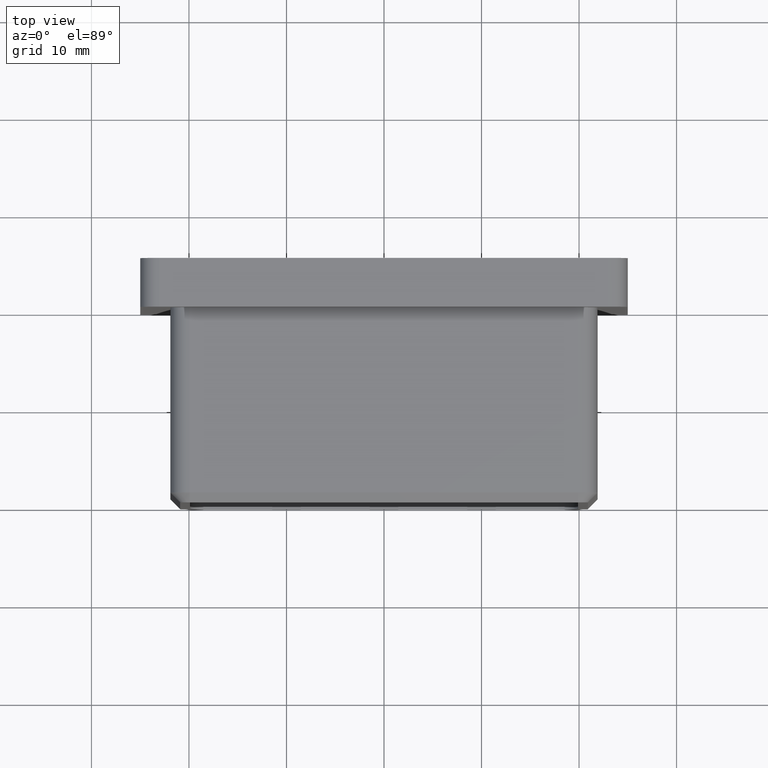
[diagram: clean part render]
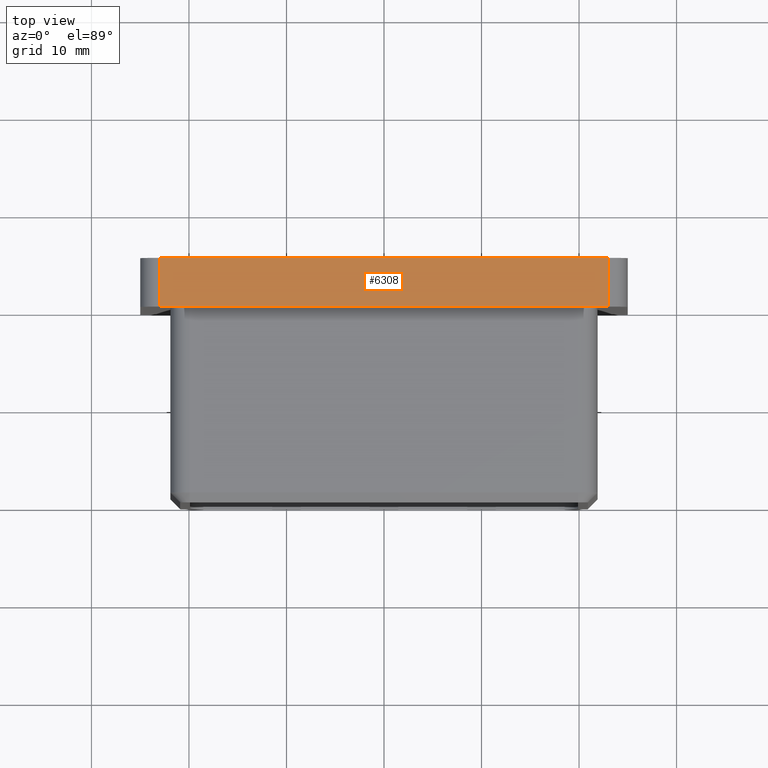
[diagram: same view with one face highlighted and labeled with its STEP entity id]
A machine part, top view. The second image highlights one B-rep face of the part: STEP entity #6308.
In plain terms, the highlighted planar face has unit normal (0, 0, -1).
Its self-contained STEP definition (entity closure, byte-faithful):
#393 = CARTESIAN_POINT ( 'NONE',  ( 23.00000000000000700, 0.0000000000000000000, 25.00000000000000400 ) ) ;
#406 = DIRECTION ( 'NONE',  ( 1.000000000000000000, 0.0000000000000000000, 0.0000000000000000000 ) ) ;
#741 = CARTESIAN_POINT ( 'NONE',  ( -22.99999999999999600, 5.000000000000000000, 25.00000000000000400 ) ) ;
#798 = FACE_OUTER_BOUND ( 'NONE', #850, .T. ) ;
#850 = EDGE_LOOP ( 'NONE', ( #4573, #2345, #15331, #6982 ) ) ;
#2257 = DIRECTION ( 'NONE',  ( 0.0000000000000000000, 0.0000000000000000000, -1.000000000000000000 ) ) ;
#2314 = VERTEX_POINT ( 'NONE', #9329 ) ;
#2345 = ORIENTED_EDGE ( 'NONE', *, *, #3915, .T. ) ;
#2372 = DIRECTION ( 'NONE',  ( -1.000000000000000000, 0.0000000000000000000, -0.0000000000000000000 ) ) ;
#3663 = VECTOR ( 'NONE', #13078, 1000.000000000000000 ) ;
#3689 = VECTOR ( 'NONE', #3936, 1000.000000000000000 ) ;
#3915 = EDGE_CURVE ( 'NONE', #13471, #10139, #13408, .T. ) ;
#3936 = DIRECTION ( 'NONE',  ( -0.0000000000000000000, 1.000000000000000000, -0.0000000000000000000 ) ) ;
#4573 = ORIENTED_EDGE ( 'NONE', *, *, #9281, .T. ) ;
#5442 = LINE ( 'NONE', #13397, #8073 ) ;
#6230 = CARTESIAN_POINT ( 'NONE',  ( -24.99999999999999300, 5.000000000000000000, 25.00000000000000400 ) ) ;
#6308 = ADVANCED_FACE ( 'NONE', ( #798 ), #10129, .F. ) ;
#6982 = ORIENTED_EDGE ( 'NONE', *, *, #14506, .T. ) ;
#7787 = LINE ( 'NONE', #16645, #9200 ) ;
#7808 = DIRECTION ( 'NONE',  ( 0.0000000000000000000, -1.000000000000000000, 0.0000000000000000000 ) ) ;
#8073 = VECTOR ( 'NONE', #406, 1000.000000000000000 ) ;
#8126 = LINE ( 'NONE', #9145, #3663 ) ;
#8791 = CARTESIAN_POINT ( 'NONE',  ( 23.00000000000000700, 5.000000000000000000, 25.00000000000000400 ) ) ;
#9145 = CARTESIAN_POINT ( 'NONE',  ( -24.99999999999999300, 5.000000000000000000, 25.00000000000000400 ) ) ;
#9200 = VECTOR ( 'NONE', #7808, 1000.000000000000000 ) ;
#9281 = EDGE_CURVE ( 'NONE', #2314, #13471, #5442, .T. ) ;
#9329 = CARTESIAN_POINT ( 'NONE',  ( -22.99999999999999600, 0.0000000000000000000, 25.00000000000000400 ) ) ;
#9837 = VERTEX_POINT ( 'NONE', #741 ) ;
#10129 = PLANE ( 'NONE',  #12864 ) ;
#10139 = VERTEX_POINT ( 'NONE', #8791 ) ;
#10396 = CARTESIAN_POINT ( 'NONE',  ( 23.00000000000000700, 5.000000000000000000, 25.00000000000000400 ) ) ;
#12460 = EDGE_CURVE ( 'NONE', #9837, #10139, #8126, .T. ) ;
#12864 = AXIS2_PLACEMENT_3D ( 'NONE', #6230, #2257, #2372 ) ;
#13078 = DIRECTION ( 'NONE',  ( 1.000000000000000000, 0.0000000000000000000, 0.0000000000000000000 ) ) ;
#13397 = CARTESIAN_POINT ( 'NONE',  ( -24.99999999999999300, 0.0000000000000000000, 25.00000000000000400 ) ) ;
#13408 = LINE ( 'NONE', #10396, #3689 ) ;
#13471 = VERTEX_POINT ( 'NONE', #393 ) ;
#14506 = EDGE_CURVE ( 'NONE', #9837, #2314, #7787, .T. ) ;
#15331 = ORIENTED_EDGE ( 'NONE', *, *, #12460, .F. ) ;
#16645 = CARTESIAN_POINT ( 'NONE',  ( -22.99999999999999600, 5.000000000000000000, 25.00000000000000400 ) ) ;